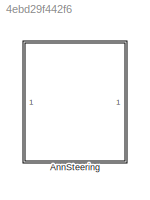
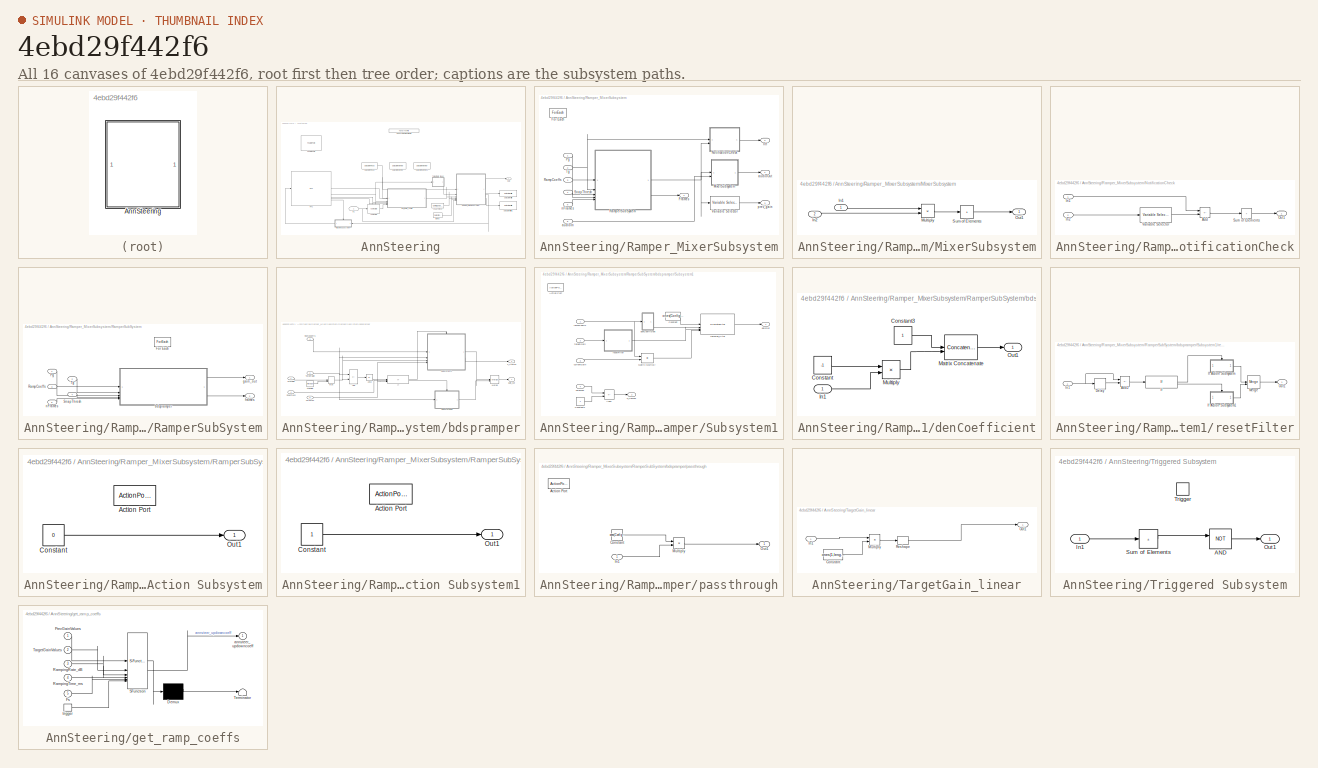
[diagram: thumbnail index - all 16 canvases of the model, root first then tree order]
MODEL slx_4ebd29f442f6
KIND library
CONFIG AbsTol = auto
CONFIG EnableMultiTasking = off
CONFIG FixedStep = auto
CONFIG MaxStep = auto
CONFIG MinStep = auto
CONFIG RelTol = 1e-3
CONFIG SampleTimeConstraint = Unconstrained
CONFIG SolverName = VariableStepAuto
CONFIG StartTime = 0.0
CONFIG StopTime = 10.0
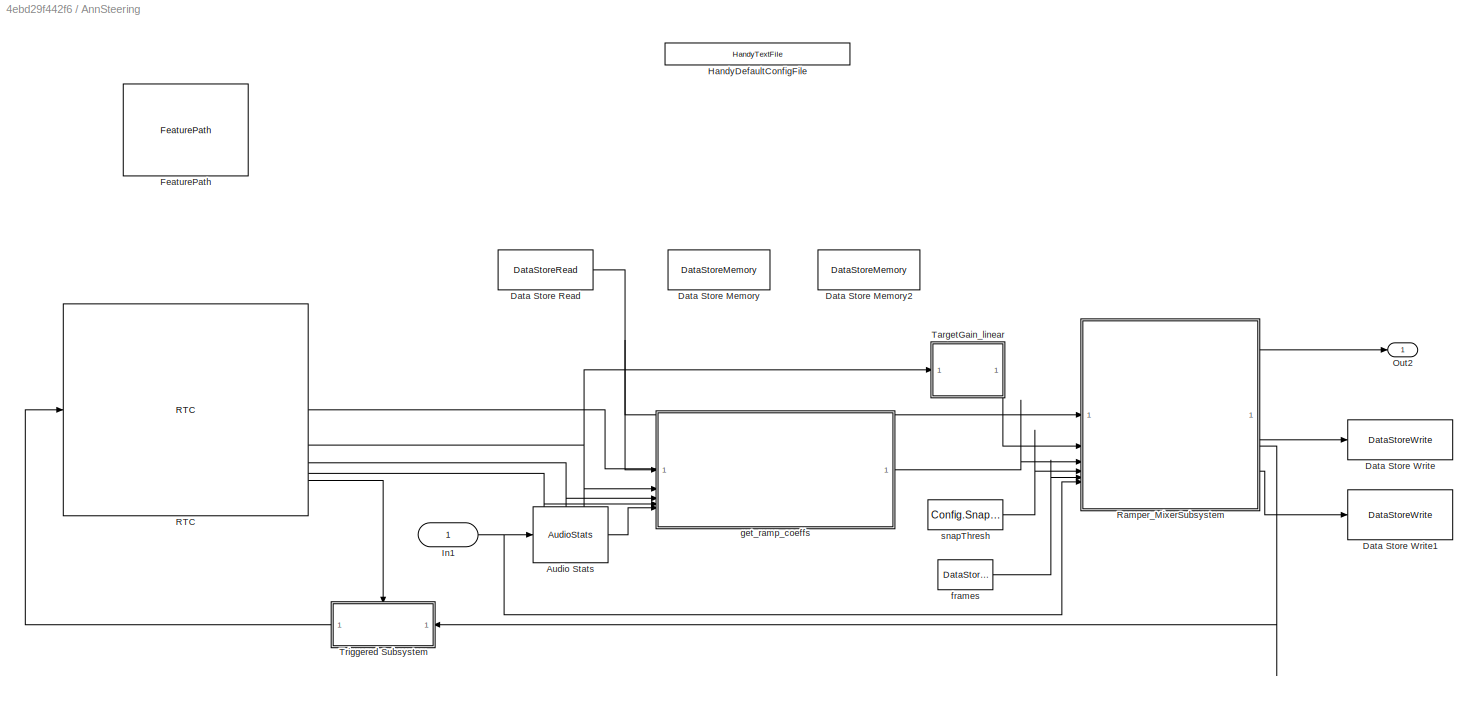
BLOCK [SubSystem] AnnSteering
BLOCK [Reference] AnnSteering/Audio Stats  REF=AudioStats/AudioStats
  SourceBlock = AudioStats/AudioStats
  SourceType = Talaria Audio Statistics
BLOCK [DataStoreMemory] AnnSteering/Data Store Memory
  DataStoreName = preGains
  InitialValue = Config.Prevgainvalues
  OutDataTypeStr = single
  ShowAdditionalParam = off
  WriteAfterWriteMsg = warning
BLOCK [DataStoreMemory] AnnSteering/Data Store Memory2
  DataStoreName = nFrames
  InitialValue = zeros(Config.NumAnnOut,Config.NumAnnIn)
  OutDataTypeStr = single
  ShowAdditionalParam = off
  SignalType = real
BLOCK [DataStoreRead] AnnSteering/Data Store Read
  DataStoreName = preGains
  IndexOptions = Index vector (dialog)
  Indices = 1
  OutputSizes = 1
BLOCK [DataStoreWrite] AnnSteering/Data Store Write
  DataStoreName = preGains
  IndexOptions = Index vector (dialog)
  Indices = 1
  OutputSizes = 1
BLOCK [DataStoreWrite] AnnSteering/Data Store Write1
  DataStoreName = nFrames
  IndexOptions = Index vector (dialog)
  Indices = 1
  OutputSizes = 1
BLOCK [Reference] AnnSteering/FeaturePath  REF=FeaturePath/FeaturePath
  SourceBlock = FeaturePath/FeaturePath
  SourceType = Talaria Feature Path
BLOCK [Reference] AnnSteering/HandyDefaultConfigFile  REF=HandyTextFile/HandyTextFile
  SourceBlock = HandyTextFile/HandyTextFile
  SourceType = Talaria Handy Text File
BLOCK [Inport] AnnSteering/In1
BLOCK [Outport] AnnSteering/Out2
  VectorParamsAs1DForOutWhenUnconnected = off
BLOCK [Reference] AnnSteering/RTC  REF=RTC/RTC
  SourceBlock = RTC/RTC
  SourceType = Talaria RTC Receive
BLOCK [SubSystem] AnnSteering/Ramper_MixerSubsystem
  TreatAsAtomicUnit = on
BLOCK [ForEach] AnnSteering/Ramper_MixerSubsystem/For Each
  DisableCoverage = on
BLOCK [Outport] AnnSteering/Ramper_MixerSubsystem/Frames
  ConcatenationDimension = 1
  Port = 4
  VectorParamsAs1DForOutWhenUnconnected = off
BLOCK [SubSystem] AnnSteering/Ramper_MixerSubsystem/MixerSubsystem
BLOCK [Inport] AnnSteering/Ramper_MixerSubsystem/MixerSubsystem/In1
BLOCK [Inport] AnnSteering/Ramper_MixerSubsystem/MixerSubsystem/In2
  Port = 2
BLOCK [Product] AnnSteering/Ramper_MixerSubsystem/MixerSubsystem/Multiply
BLOCK [Outport] AnnSteering/Ramper_MixerSubsystem/MixerSubsystem/Out1
  VectorParamsAs1DForOutWhenUnconnected = off
BLOCK [Sum] AnnSteering/Ramper_MixerSubsystem/MixerSubsystem/Sum of Elements
  CollapseDim = 2
  CollapseMode = Specified dimension
  IconShape = rectangular
  Inputs = +
BLOCK [SubSystem] AnnSteering/Ramper_MixerSubsystem/NotificationCheck
BLOCK [Sum] AnnSteering/Ramper_MixerSubsystem/NotificationCheck/Add
  IconShape = rectangular
  Inputs = +-
BLOCK [Inport] AnnSteering/Ramper_MixerSubsystem/NotificationCheck/In1
BLOCK [Inport] AnnSteering/Ramper_MixerSubsystem/NotificationCheck/In2
  Port = 2
BLOCK [Outport] AnnSteering/Ramper_MixerSubsystem/NotificationCheck/Out1
  VectorParamsAs1DForOutWhenUnconnected = off
BLOCK [Sum] AnnSteering/Ramper_MixerSubsystem/NotificationCheck/Sum of Elements
  CollapseDim = 2
  CollapseMode = Specified dimension
  IconShape = rectangular
  Inputs = +
BLOCK [Reference] AnnSteering/Ramper_MixerSubsystem/NotificationCheck/Variable Selector  REF=dspindex/Variable
Selector
  SourceBlock = dspindex/Variable\nSelector
  SourceType = Variable Selector
BLOCK [Inport] AnnSteering/Ramper_MixerSubsystem/Pg
  Partition = on
  PartitionDimension = 1
  PartitionOffset = 0
  PartitionWidth = 1
BLOCK [Inport] AnnSteering/Ramper_MixerSubsystem/RampCoeffs
  Partition = on
  PartitionDimension = 1
  PartitionOffset = 0
  PartitionWidth = 1
  Port = 3
BLOCK [SubSystem] AnnSteering/Ramper_MixerSubsystem/RamperSubSystem
  TreatAsAtomicUnit = on
BLOCK [ForEach] AnnSteering/Ramper_MixerSubsystem/RamperSubSystem/For Each
  DisableCoverage = on
BLOCK [Inport] AnnSteering/Ramper_MixerSubsystem/RamperSubSystem/Pg
  Partition = on
  PartitionDimension = 2
  PartitionOffset = 0
  PartitionWidth = 1
BLOCK [Inport] AnnSteering/Ramper_MixerSubsystem/RamperSubSystem/RampCoeffs
  Partition = on
  PartitionDimension = 2
  PartitionOffset = 0
  PartitionWidth = 1
  Port = 3
BLOCK [Inport] AnnSteering/Ramper_MixerSubsystem/RamperSubSystem/SnapThresh
  Partition = on
  PartitionDimension = 2
  PartitionOffset = 0
  PartitionWidth = 1
  Port = 4
BLOCK [Inport] AnnSteering/Ramper_MixerSubsystem/RamperSubSystem/Tg
  Partition = on
  PartitionDimension = 2
  PartitionOffset = 0
  PartitionWidth = 1
  Port = 2
BLOCK [SubSystem] AnnSteering/Ramper_MixerSubsystem/RamperSubSystem/bdspramper
BLOCK [Abs] AnnSteering/Ramper_MixerSubsystem/RamperSubSystem/bdspramper/Abs3
  SaturateOnIntegerOverflow = off
BLOCK [Sum] AnnSteering/Ramper_MixerSubsystem/RamperSubSystem/bdspramper/Add
  IconShape = rectangular
  Inputs = +-
BLOCK [If] AnnSteering/Ramper_MixerSubsystem/RamperSubSystem/bdspramper/If
  IfExpression = (u1 > u2) & (u3>0)
  NumInputs = 3
BLOCK [MinMax] AnnSteering/Ramper_MixerSubsystem/RamperSubSystem/bdspramper/Max
  Function = max
  Inputs = 2
BLOCK [Merge] AnnSteering/Ramper_MixerSubsystem/RamperSubSystem/bdspramper/Merge
BLOCK [Inport] AnnSteering/Ramper_MixerSubsystem/RamperSubSystem/bdspramper/PrevGain
BLOCK [Inport] AnnSteering/Ramper_MixerSubsystem/RamperSubSystem/bdspramper/RampCoeffs
  Port = 3
BLOCK [Inport] AnnSteering/Ramper_MixerSubsystem/RamperSubSystem/bdspramper/SnapTresh
  Port = 4
BLOCK [SubSystem] AnnSteering/Ramper_MixerSubsystem/RamperSubSystem/bdspramper/Subsystem1
BLOCK [ActionPort] AnnSteering/Ramper_MixerSubsystem/RamperSubSystem/bdspramper/Subsystem1/Action Port
BLOCK [Sum] AnnSteering/Ramper_MixerSubsystem/RamperSubSystem/bdspramper/Subsystem1/Add1
  IconShape = rectangular
  Inputs = +-
BLOCK [Constant] AnnSteering/Ramper_MixerSubsystem/RamperSubSystem/bdspramper/Subsystem1/Constant
  OutDataTypeStr = single
  Value = ones(Config.FrameSize,1)
  VectorParams1D = off
BLOCK [Constant] AnnSteering/Ramper_MixerSubsystem/RamperSubSystem/bdspramper/Subsystem1/Constant1
  OutDataTypeStr = single
BLOCK [Product] AnnSteering/Ramper_MixerSubsystem/RamperSubSystem/bdspramper/Subsystem1/Matrix Multiply
BLOCK [Inport] AnnSteering/Ramper_MixerSubsystem/RamperSubSystem/bdspramper/Subsystem1/currentGain
  Port = 3
BLOCK [SubSystem] AnnSteering/Ramper_MixerSubsystem/RamperSubSystem/bdspramper/Subsystem1/denCoefficient
BLOCK [Constant] AnnSteering/Ramper_MixerSubsystem/RamperSubSystem/bdspramper/Subsystem1/denCoefficient/Constant
  OutDataTypeStr = single
  Value = -1
BLOCK [Constant] AnnSteering/Ramper_MixerSubsystem/RamperSubSystem/bdspramper/Subsystem1/denCoefficient/Constant3
  OutDataTypeStr = single
BLOCK [Inport] AnnSteering/Ramper_MixerSubsystem/RamperSubSystem/bdspramper/Subsystem1/denCoefficient/In1
BLOCK [Concatenate] AnnSteering/Ramper_MixerSubsystem/RamperSubSystem/bdspramper/Subsystem1/denCoefficient/Matrix Concatenate
  ConcatenateDimension = 2
  Mode = Multidimensional array
BLOCK [Product] AnnSteering/Ramper_MixerSubsystem/RamperSubSystem/bdspramper/Subsystem1/denCoefficient/Multiply
BLOCK [Outport] AnnSteering/Ramper_MixerSubsystem/RamperSubSystem/bdspramper/Subsystem1/denCoefficient/Out1
  VectorParamsAs1DForOutWhenUnconnected = off
BLOCK [Outport] AnnSteering/Ramper_MixerSubsystem/RamperSubSystem/bdspramper/Subsystem1/gainOut
BLOCK [Inport] AnnSteering/Ramper_MixerSubsystem/RamperSubSystem/bdspramper/Subsystem1/nFrames
  Port = 4
BLOCK [Outport] AnnSteering/Ramper_MixerSubsystem/RamperSubSystem/bdspramper/Subsystem1/n_frames
  Port = 2
BLOCK [Inport] AnnSteering/Ramper_MixerSubsystem/RamperSubSystem/bdspramper/Subsystem1/rampCoeffs
BLOCK [DiscreteFilter] AnnSteering/Ramper_MixerSubsystem/RamperSubSystem/bdspramper/Subsystem1/ramping_filter
  Denominator = [1 -1.0003]
  DenominatorSource = Input port
  ExternalReset = Level hold
  FilterStructure = Direct form II transposed
  InitialStates = 1.0003
  InitialStatesSource = Input port
  InputPortMap = u0,p3,r7,p5
  InputProcessing = Columns as channels (frame based)
  Numerator = 0
  a0EqualsOne = on
BLOCK [SubSystem] AnnSteering/Ramper_MixerSubsystem/RamperSubSystem/bdspramper/Subsystem1/resetFilter
BLOCK [Sum] AnnSteering/Ramper_MixerSubsystem/RamperSubSystem/bdspramper/Subsystem1/resetFilter/Add2
  IconShape = rectangular
  Inputs = +-
BLOCK [Delay] AnnSteering/Ramper_MixerSubsystem/RamperSubSystem/bdspramper/Subsystem1/resetFilter/Delay
  DelayLength = 1
  InputPortMap = u0
BLOCK [If] AnnSteering/Ramper_MixerSubsystem/RamperSubSystem/bdspramper/Subsystem1/resetFilter/If
  IfExpression = u1 == 0
BLOCK [SubSystem] AnnSteering/Ramper_MixerSubsystem/RamperSubSystem/bdspramper/Subsystem1/resetFilter/If Action Subsystem
  TreatAsAtomicUnit = on
BLOCK [ActionPort] AnnSteering/Ramper_MixerSubsystem/RamperSubSystem/bdspramper/Subsystem1/resetFilter/If Action Subsystem/Action Port
BLOCK [Constant] AnnSteering/Ramper_MixerSubsystem/RamperSubSystem/bdspramper/Subsystem1/resetFilter/If Action Subsystem/Constant
  OutDataTypeStr = boolean
  Value = 0
BLOCK [Outport] AnnSteering/Ramper_MixerSubsystem/RamperSubSystem/bdspramper/Subsystem1/resetFilter/If Action Subsystem/Out1
  VectorParamsAs1DForOutWhenUnconnected = off
BLOCK [SubSystem] AnnSteering/Ramper_MixerSubsystem/RamperSubSystem/bdspramper/Subsystem1/resetFilter/If Action Subsystem1
  TreatAsAtomicUnit = on
BLOCK [ActionPort] AnnSteering/Ramper_MixerSubsystem/RamperSubSystem/bdspramper/Subsystem1/resetFilter/If Action Subsystem1/Action Port
BLOCK [Constant] AnnSteering/Ramper_MixerSubsystem/RamperSubSystem/bdspramper/Subsystem1/resetFilter/If Action Subsystem1/Constant
  OutDataTypeStr = boolean
BLOCK [Outport] AnnSteering/Ramper_MixerSubsystem/RamperSubSystem/bdspramper/Subsystem1/resetFilter/If Action Subsystem1/Out1
  VectorParamsAs1DForOutWhenUnconnected = off
BLOCK [Inport] AnnSteering/Ramper_MixerSubsystem/RamperSubSystem/bdspramper/Subsystem1/resetFilter/In1
BLOCK [Merge] AnnSteering/Ramper_MixerSubsystem/RamperSubSystem/bdspramper/Subsystem1/resetFilter/Merge
BLOCK [Outport] AnnSteering/Ramper_MixerSubsystem/RamperSubSystem/bdspramper/Subsystem1/resetFilter/Out1
  VectorParamsAs1DForOutWhenUnconnected = off
BLOCK [Inport] AnnSteering/Ramper_MixerSubsystem/RamperSubSystem/bdspramper/Subsystem1/targetGain
  Port = 2
BLOCK [Inport] AnnSteering/Ramper_MixerSubsystem/RamperSubSystem/bdspramper/TargetGain
  Port = 2
BLOCK [Outport] AnnSteering/Ramper_MixerSubsystem/RamperSubSystem/bdspramper/gain_out
  VectorParamsAs1DForOutWhenUnconnected = off
BLOCK [Constant] AnnSteering/Ramper_MixerSubsystem/RamperSubSystem/bdspramper/minGain
  OutDataTypeStr = single
  Value = minValue
BLOCK [Inport] AnnSteering/Ramper_MixerSubsystem/RamperSubSystem/bdspramper/nFrames
  Port = 5
BLOCK [Outport] AnnSteering/Ramper_MixerSubsystem/RamperSubSystem/bdspramper/n_frames
  Port = 2
BLOCK [SubSystem] AnnSteering/Ramper_MixerSubsystem/RamperSubSystem/bdspramper/passthrough
BLOCK [ActionPort] AnnSteering/Ramper_MixerSubsystem/RamperSubSystem/bdspramper/passthrough/Action Port
BLOCK [Constant] AnnSteering/Ramper_MixerSubsystem/RamperSubSystem/bdspramper/passthrough/Constant
  OutDataTypeStr = single
  Value = ones(Config.FrameSize,1)
  VectorParams1D = off
BLOCK [Inport] AnnSteering/Ramper_MixerSubsystem/RamperSubSystem/bdspramper/passthrough/In1
BLOCK [Product] AnnSteering/Ramper_MixerSubsystem/RamperSubSystem/bdspramper/passthrough/Multiply
BLOCK [Outport] AnnSteering/Ramper_MixerSubsystem/RamperSubSystem/bdspramper/passthrough/Out1
  VectorParamsAs1DForOutWhenUnconnected = off
BLOCK [Outport] AnnSteering/Ramper_MixerSubsystem/RamperSubSystem/frames
  ConcatenationDimension = 2
  Port = 2
  VectorParamsAs1DForOutWhenUnconnected = off
BLOCK [Outport] AnnSteering/Ramper_MixerSubsystem/RamperSubSystem/gain_out
  ConcatenationDimension = 2
  VectorParamsAs1DForOutWhenUnconnected = off
BLOCK [Inport] AnnSteering/Ramper_MixerSubsystem/RamperSubSystem/nFrames
  Partition = on
  PartitionDimension = 2
  PartitionOffset = 0
  PartitionWidth = 1
  Port = 5
BLOCK [Inport] AnnSteering/Ramper_MixerSubsystem/SnapThresh
  Partition = on
  PartitionDimension = 1
  PartitionOffset = 0
  PartitionWidth = 1
  Port = 4
BLOCK [Inport] AnnSteering/Ramper_MixerSubsystem/Tg
  Partition = on
  PartitionDimension = 1
  PartitionOffset = 0
  PartitionWidth = 1
  Port = 2
BLOCK [Reference] AnnSteering/Ramper_MixerSubsystem/Variable Selector  REF=dspindex/Variable
Selector
  SourceBlock = dspindex/Variable\nSelector
  SourceType = Variable Selector
BLOCK [Inport] AnnSteering/Ramper_MixerSubsystem/audioIn
  Port = 6
BLOCK [Outport] AnnSteering/Ramper_MixerSubsystem/audioOut
  ConcatenationDimension = 2
  VectorParamsAs1DForOutWhenUnconnected = off
BLOCK [Inport] AnnSteering/Ramper_MixerSubsystem/nFrames
  Partition = on
  PartitionDimension = 1
  PartitionOffset = 0
  PartitionWidth = 1
  Port = 5
BLOCK [Outport] AnnSteering/Ramper_MixerSubsystem/ntf
  ConcatenationDimension = 2
  Port = 2
  VectorParamsAs1DForOutWhenUnconnected = off
BLOCK [Outport] AnnSteering/Ramper_MixerSubsystem/prev_gain
  ConcatenationDimension = 1
  Port = 3
  VectorParamsAs1DForOutWhenUnconnected = off
BLOCK [SubSystem] AnnSteering/TargetGain_linear
BLOCK [Constant] AnnSteering/TargetGain_linear/Constant
  OutDataTypeStr = single
  SampleTime = Inf
  Value = ones(1,length(Config.InitialTargetGainRtc))
  VectorParams1D = off
BLOCK [Inport] AnnSteering/TargetGain_linear/In1
  OutDataTypeStr = single
BLOCK [Product] AnnSteering/TargetGain_linear/Multiply
BLOCK [Outport] AnnSteering/TargetGain_linear/Out1
  VectorParamsAs1DForOutWhenUnconnected = off
BLOCK [Reshape] AnnSteering/TargetGain_linear/Reshape
  OutputDimensionality = Customize
  OutputDimensions = [Config.NumAnnOut,Config.NumAnnIn]
BLOCK [SubSystem] AnnSteering/Triggered Subsystem
  TreatAsAtomicUnit = on
BLOCK [Logic] AnnSteering/Triggered Subsystem/AND
  AllPortsSameDT = off
  IconShape = distinctive
  Operator = NOT
  OutDataTypeStr = boolean
BLOCK [Inport] AnnSteering/Triggered Subsystem/In1
BLOCK [Outport] AnnSteering/Triggered Subsystem/Out1
  VectorParamsAs1DForOutWhenUnconnected = off
BLOCK [Sum] AnnSteering/Triggered Subsystem/Sum of Elements
  CollapseDim = 2
  CollapseMode = Specified dimension
  IconShape = rectangular
  Inputs = +
BLOCK [TriggerPort] AnnSteering/Triggered Subsystem/Trigger
  StatesWhenEnabling = held
  TriggerType = function-call
  VariantControl = Variant
BLOCK [DataStoreRead] AnnSteering/frames
  DataStoreName = nFrames
  IndexOptions = Index vector (dialog)
  Indices = 1
  OutputSizes = 1
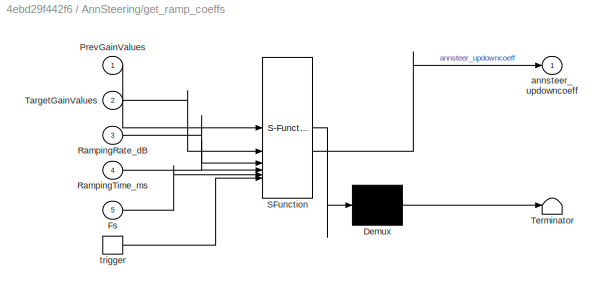
BLOCK [SubSystem] AnnSteering/get_ramp_coeffs
  ErrorFcn = Stateflow.Translate.translate
  PermitHierarchicalResolution = ExplicitOnly
  SFBlockType = MATLAB Function
  TreatAsAtomicUnit = on
BLOCK [Demux] AnnSteering/get_ramp_coeffs/ Demux 
  Outputs = 1
BLOCK [S-Function] AnnSteering/get_ramp_coeffs/ SFunction 
  EnableBusSupport = off
  FunctionName = sf_sfun
  Parameters = frameSize,minValue
  PortCounts = [6 2]
  SFcnIsStateOwnerBlock = off
  SFunctionDeploymentMode = off
  Tag = Stateflow S-Function 2
BLOCK [Terminator] AnnSteering/get_ramp_coeffs/ Terminator 
BLOCK [Inport] AnnSteering/get_ramp_coeffs/Fs
  Port = 5
BLOCK [Inport] AnnSteering/get_ramp_coeffs/PrevGainValues
BLOCK [Inport] AnnSteering/get_ramp_coeffs/RampingRate_dB
  Port = 3
BLOCK [Inport] AnnSteering/get_ramp_coeffs/RampingTime_ms
  Port = 4
BLOCK [Inport] AnnSteering/get_ramp_coeffs/TargetGainValues
  Port = 2
BLOCK [Outport] AnnSteering/get_ramp_coeffs/annsteer_updowncoeff
  VectorParamsAs1DForOutWhenUnconnected = off
BLOCK [TriggerPort] AnnSteering/get_ramp_coeffs/trigger
  ShowOutputPort = on
  StatesWhenEnabling = held
  TriggerType = function-call
  VariantControl = (inherit)
BLOCK [Constant] AnnSteering/snapThresh
  OutDataTypeStr = single
  Value = Config.SnapThresh
  VectorParams1D = off
CHART AnnSteering/get_ramp_coeffs states=1 transitions=1
  STATE_LABEL 'eML_blk_kernel()'
  STATE_LABEL 'SCRIPT:\nfunction annsteer_updowncoeff = fcn(PrevGainValues, TargetGainValues,RampingRate_dB,RampingTime_ms, Fs, minValue, frameSize)\n\nglobal nFrames\n\n[numAnnOut,numAnnInp] = size(PrevGainValues);\nTargetGain = reshape(TargetGainValues,numAnnOut,numAnnInp);\nRampingRate = single(reshape(RampingRate_dB,numAnnOut,numAnnInp));\nRampingTime = single(reshape(RampingTime_ms,numAnnOut,numAnnInp));\n\n% Nudge t...<+1325ch>'
CHART  states=0 transitions=0
